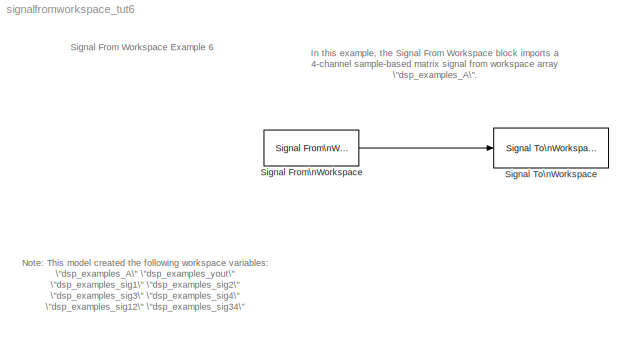
MODEL signalfromworkspace_tut6
KIND model
CONFIG AbsTol = auto
CONFIG FixedStep = auto
CONFIG MaxStep = auto
CONFIG MinStep = auto
CONFIG PostLoadFcn = set_param(gcs,'SimulationCommand','Update')
CONFIG PreLoadFcn = dsp_examples_sig1 = reshape(1:100,[1 1 100]);dsp_examples_sig2 = reshape(-1:-1:-100,[1 1 100]);dsp_examples_sig3 = zeros(1,1,100);dsp_examples_sig4 = 5*ones(1,1,100);dsp_examples_sig12 = cat(2,dsp_examples_sig1,dsp_examples_sig2);dsp_examples_sig34 = cat(2,dsp_examples_sig3,dsp_examples_sig4);dsp_examples_A = cat(1,dsp_examples_sig12,dsp_examples_sig34);whos dsp_examples_*
CONFIG RelTol = 1e-3
CONFIG Solver = FixedStepDiscrete
CONFIG SolverMode = Auto
CONFIG StartTime = 0.0
CONFIG StopTime = 10.0
BLOCK [Reference] Signal From\nWorkspace  REF=dspsrcs4/Signal From\nWorkspace
  OutputAfterFinalValue = Setting to zero
  Ports = [0, 1]
  SourceBlock = dspsrcs4/Signal From\nWorkspace
  SourceType = Signal From Workspace
  Ts = 1
  X = dsp_examples_A
  nsamps = 1
BLOCK [Reference] Signal To\nWorkspace  REF=dspsnks4/Signal To\nWorkspace
  Decimation = 1
  FrameMode = Concatenate frames (2-D array)
  MaxDataPoints = inf
  Ports = [1]
  SourceBlock = dspsnks4/Signal To\nWorkspace
  SourceType = Signal To Workspace
  VariableName = dsp_examples_yout
ANNOTATION (root): In this example, the Signal From Workspace block imports a\n4-channel sample-based matrix signal from workspace array\n\"dsp_examples_A\".
ANNOTATION (root): Note: This model created the following workspace variables:\n \"dsp_examples_A\" \"dsp_examples_yout\"\n \"dsp_examples_sig1\" \"dsp_examples_sig2\"\n \"dsp_examples_sig3\" \"dsp_examples_sig4\"\n \"dsp_examples_sig12\" \"dsp_examples_sig34\"
ANNOTATION (root): Signal From Workspace Example 6
LINE Signal From\nWorkspace:1 -> Signal To\nWorkspace:1
